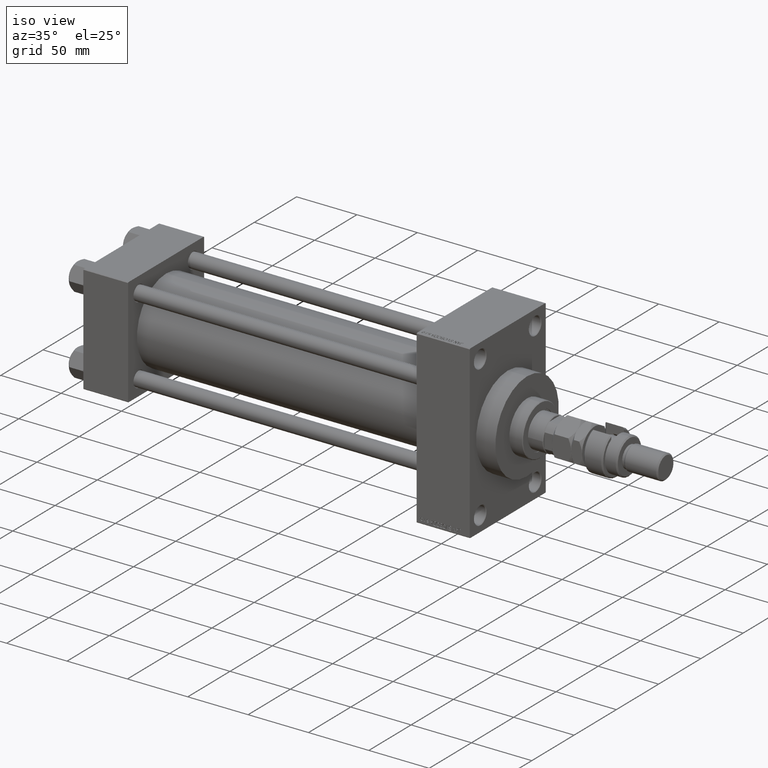
[diagram: clean part render]
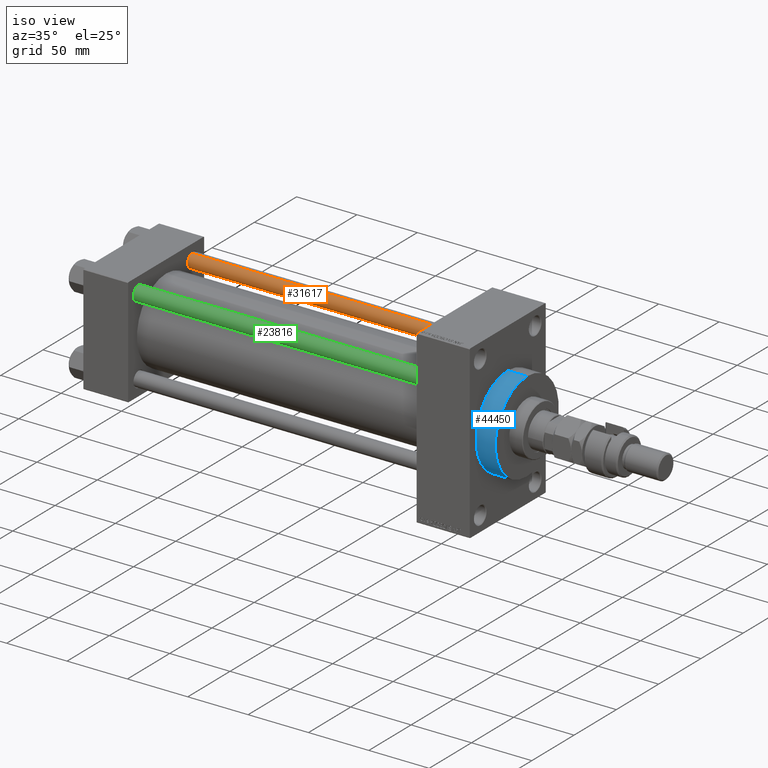
[diagram: same view with three faces highlighted in distinct colors, each labeled with its STEP entity id]
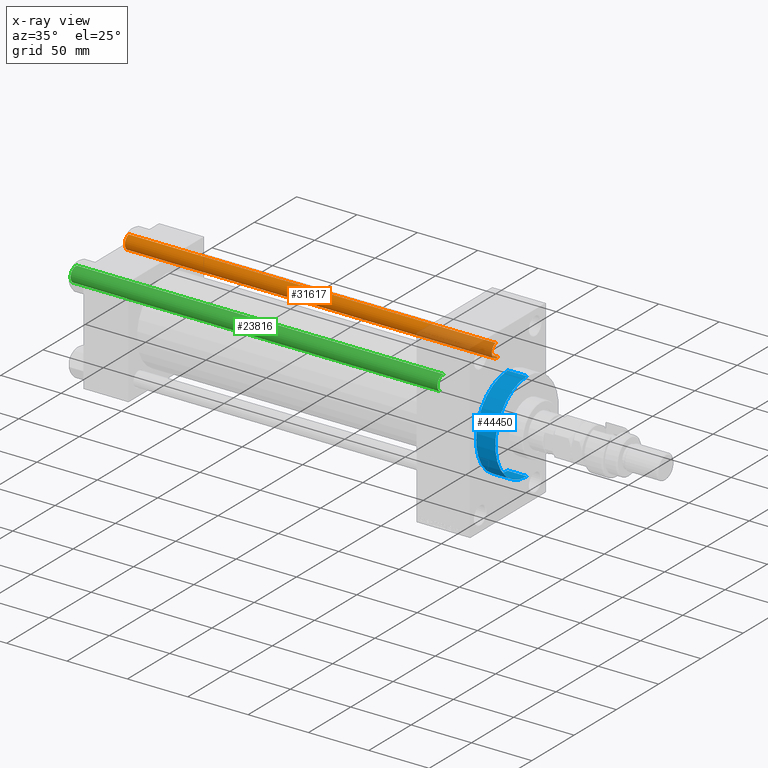
[diagram: x-ray of the same camera — body ghosted, the three highlighted faces saturated]
A machine part, iso view with three faces highlighted in distinct colors.
The next image is the same camera in x-ray (body ghosted, the three faces saturated) — at least one of them is partly hidden behind the body in this view.
Their STEP definitions:

[orange] entity #31617 — the highlighted cylindrical surface (edge-blend (fillet) strip) has radius 6 mm, axis along (-1, -0, 0).
#382 = DIRECTION ( 'NONE',  ( -0.000000000000000000, -0.000000000000000000, -1.000000000000000000 ) ) ;
#625 = DIRECTION ( 'NONE',  ( -1.000000000000000000, 0.000000000000000000, 0.000000000000000000 ) ) ;
#1060 = CARTESIAN_POINT ( 'NONE',  ( -6.000000000000000888, 0.000000000000000000, 304.5000000000000000 ) ) ;
#3107 = EDGE_CURVE ( 'NONE', #6228, #10237, #3944, .T. ) ;
#3944 = LINE ( 'NONE', #39117, #28793 ) ;
#5693 = ORIENTED_EDGE ( 'NONE', *, *, #22621, .T. ) ;
#6228 = VERTEX_POINT ( 'NONE', #37129 ) ;
#7204 = CARTESIAN_POINT ( 'NONE',  ( 0.000000000000000000, 0.000000000000000000, 0.5000000000000004441 ) ) ;
#8238 = CYLINDRICAL_SURFACE ( 'NONE', #37140, 6.000000000000000888 ) ;
#9472 = AXIS2_PLACEMENT_3D ( 'NONE', #7204, #10248, #22361 ) ;
#10237 = VERTEX_POINT ( 'NONE', #14074 ) ;
#10248 = DIRECTION ( 'NONE',  ( -0.000000000000000000, -0.000000000000000000, 1.000000000000000000 ) ) ;
#14074 = CARTESIAN_POINT ( 'NONE',  ( 6.000000000000000888, 7.347880794884120722E-16, 0.5000000000000004441 ) ) ;
#14193 = DIRECTION ( 'NONE',  ( -0.000000000000000000, -0.000000000000000000, -1.000000000000000000 ) ) ;
#15218 = DIRECTION ( 'NONE',  ( 0.000000000000000000, 0.000000000000000000, -1.000000000000000000 ) ) ;
#15479 = CARTESIAN_POINT ( 'NONE',  ( 0.000000000000000000, 0.000000000000000000, 304.5000000000000000 ) ) ;
#16490 = ORIENTED_EDGE ( 'NONE', *, *, #43060, .T. ) ;
#22361 = DIRECTION ( 'NONE',  ( 1.000000000000000000, 0.000000000000000000, 0.000000000000000000 ) ) ;
#22621 = EDGE_CURVE ( 'NONE', #26997, #10237, #47443, .T. ) ;
#24135 = DIRECTION ( 'NONE',  ( -0.000000000000000000, -0.000000000000000000, -1.000000000000000000 ) ) ;
#25826 = LINE ( 'NONE', #41055, #40228 ) ;
#26377 = EDGE_CURVE ( 'NONE', #48437, #26997, #25826, .T. ) ;
#26997 = VERTEX_POINT ( 'NONE', #41186 ) ;
#27688 = CARTESIAN_POINT ( 'NONE',  ( 0.000000000000000000, 0.000000000000000000, 305.0000000000000000 ) ) ;
#28793 = VECTOR ( 'NONE', #382, 1000.000000000000000 ) ;
#30664 = DIRECTION ( 'NONE',  ( 1.000000000000000000, 0.000000000000000000, 0.000000000000000000 ) ) ;
#31617 = ADVANCED_FACE ( 'NONE', ( #46702 ), #8238, .T. ) ;
#33929 = AXIS2_PLACEMENT_3D ( 'NONE', #15479, #15218, #30664 ) ;
#37129 = CARTESIAN_POINT ( 'NONE',  ( 6.000000000000000888, 7.347880794884120722E-16, 304.5000000000000000 ) ) ;
#37140 = AXIS2_PLACEMENT_3D ( 'NONE', #27688, #24135, #625 ) ;
#38824 = ORIENTED_EDGE ( 'NONE', *, *, #26377, .T. ) ;
#39117 = CARTESIAN_POINT ( 'NONE',  ( 6.000000000000000888, 7.347880794884120722E-16, 305.0000000000000000 ) ) ;
#40228 = VECTOR ( 'NONE', #14193, 1000.000000000000000 ) ;
#41055 = CARTESIAN_POINT ( 'NONE',  ( -6.000000000000000888, 0.000000000000000000, 305.0000000000000000 ) ) ;
#41186 = CARTESIAN_POINT ( 'NONE',  ( -6.000000000000000888, 0.000000000000000000, 0.5000000000000004441 ) ) ;
#43060 = EDGE_CURVE ( 'NONE', #6228, #48437, #49298, .T. ) ;
#44878 = ORIENTED_EDGE ( 'NONE', *, *, #3107, .F. ) ;
#46702 = FACE_OUTER_BOUND ( 'NONE', #48497, .T. ) ;
#47443 = CIRCLE ( 'NONE', #9472, 6.000000000000000888 ) ;
#48437 = VERTEX_POINT ( 'NONE', #1060 ) ;
#48497 = EDGE_LOOP ( 'NONE', ( #44878, #16490, #38824, #5693 ) ) ;
#49298 = CIRCLE ( 'NONE', #33929, 6.000000000000000888 ) ;

[blue] entity #44450 — the highlighted cylindrical surface (partial cylindrical patch) has radius 37.5 mm, axis along (-1, -0, -0).
#691 = DIRECTION ( 'NONE',  ( 0.000000000000000000, 0.000000000000000000, 1.000000000000000000 ) ) ;
#767 = CARTESIAN_POINT ( 'NONE',  ( 335.9999999999999432, 0.000000000000000000, 0.000000000000000000 ) ) ;
#1314 = ORIENTED_EDGE ( 'NONE', *, *, #10794, .F. ) ;
#1732 = DIRECTION ( 'NONE',  ( 0.000000000000000000, 0.000000000000000000, -1.000000000000000000 ) ) ;
#3071 = DIRECTION ( 'NONE',  ( -1.000000000000000000, -0.000000000000000000, -0.000000000000000000 ) ) ;
#4708 = CARTESIAN_POINT ( 'NONE',  ( 335.9999999999999432, 0.000000000000000000, 37.50000000000000711 ) ) ;
#5682 = ORIENTED_EDGE ( 'NONE', *, *, #32924, .F. ) ;
#6645 = VERTEX_POINT ( 'NONE', #16995 ) ;
#6871 = CARTESIAN_POINT ( 'NONE',  ( 335.9999999999999432, 4.592425496802575156E-15, -37.50000000000000711 ) ) ;
#7123 = LINE ( 'NONE', #6871, #46068 ) ;
#7624 = EDGE_LOOP ( 'NONE', ( #5682, #1314, #21260, #42569 ) ) ;
#8530 = CARTESIAN_POINT ( 'NONE',  ( 319.9999999999999432, 0.000000000000000000, 37.50000000000000711 ) ) ;
#10475 = CIRCLE ( 'NONE', #40423, 37.50000000000000711 ) ;
#10794 = EDGE_CURVE ( 'NONE', #21347, #25921, #10475, .T. ) ;
#13830 = CIRCLE ( 'NONE', #40527, 37.50000000000000711 ) ;
#16995 = CARTESIAN_POINT ( 'NONE',  ( 319.9999999999999432, 4.592425496802575156E-15, -37.50000000000000711 ) ) ;
#17133 = CYLINDRICAL_SURFACE ( 'NONE', #41293, 37.50000000000000711 ) ;
#21260 = ORIENTED_EDGE ( 'NONE', *, *, #37385, .T. ) ;
#21347 = VERTEX_POINT ( 'NONE', #4708 ) ;
#23696 = DIRECTION ( 'NONE',  ( -1.000000000000000000, -0.000000000000000000, -0.000000000000000000 ) ) ;
#23930 = VERTEX_POINT ( 'NONE', #8530 ) ;
#25921 = VERTEX_POINT ( 'NONE', #44917 ) ;
#26694 = VECTOR ( 'NONE', #43204, 1000.000000000000000 ) ;
#28250 = CARTESIAN_POINT ( 'NONE',  ( 335.9999999999999432, 0.000000000000000000, 0.000000000000000000 ) ) ;
#31290 = CARTESIAN_POINT ( 'NONE',  ( 335.9999999999999432, 0.000000000000000000, 37.50000000000000711 ) ) ;
#31818 = FACE_OUTER_BOUND ( 'NONE', #7624, .T. ) ;
#32924 = EDGE_CURVE ( 'NONE', #25921, #6645, #7123, .T. ) ;
#34608 = EDGE_CURVE ( 'NONE', #23930, #6645, #13830, .T. ) ;
#36148 = CARTESIAN_POINT ( 'NONE',  ( 319.9999999999999432, 0.000000000000000000, 0.000000000000000000 ) ) ;
#36453 = DIRECTION ( 'NONE',  ( 1.000000000000000000, 0.000000000000000000, 0.000000000000000000 ) ) ;
#36659 = DIRECTION ( 'NONE',  ( 1.000000000000000000, 0.000000000000000000, 0.000000000000000000 ) ) ;
#37385 = EDGE_CURVE ( 'NONE', #21347, #23930, #39146, .T. ) ;
#39146 = LINE ( 'NONE', #31290, #26694 ) ;
#40423 = AXIS2_PLACEMENT_3D ( 'NONE', #767, #36453, #47590 ) ;
#40527 = AXIS2_PLACEMENT_3D ( 'NONE', #36148, #36659, #1732 ) ;
#41293 = AXIS2_PLACEMENT_3D ( 'NONE', #28250, #23696, #691 ) ;
#42569 = ORIENTED_EDGE ( 'NONE', *, *, #34608, .T. ) ;
#43204 = DIRECTION ( 'NONE',  ( -1.000000000000000000, -0.000000000000000000, -0.000000000000000000 ) ) ;
#44450 = ADVANCED_FACE ( 'NONE', ( #31818 ), #17133, .T. ) ;
#44917 = CARTESIAN_POINT ( 'NONE',  ( 335.9999999999999432, 4.592425496802575156E-15, -37.50000000000000711 ) ) ;
#46068 = VECTOR ( 'NONE', #3071, 1000.000000000000000 ) ;
#47590 = DIRECTION ( 'NONE',  ( 0.000000000000000000, 0.000000000000000000, -1.000000000000000000 ) ) ;

[green] entity #23816 — the highlighted cylindrical surface (edge-blend (fillet) strip) has radius 6 mm, axis along (1, 0, 0).
#201 = EDGE_LOOP ( 'NONE', ( #5443, #42107, #18013, #38277 ) ) ;
#382 = DIRECTION ( 'NONE',  ( -0.000000000000000000, -0.000000000000000000, -1.000000000000000000 ) ) ;
#1060 = CARTESIAN_POINT ( 'NONE',  ( -6.000000000000000888, 0.000000000000000000, 304.5000000000000000 ) ) ;
#1407 = CIRCLE ( 'NONE', #28041, 6.000000000000000888 ) ;
#1924 = DIRECTION ( 'NONE',  ( 0.000000000000000000, 0.000000000000000000, -1.000000000000000000 ) ) ;
#3107 = EDGE_CURVE ( 'NONE', #6228, #10237, #3944, .T. ) ;
#3490 = DIRECTION ( 'NONE',  ( -0.000000000000000000, -0.000000000000000000, -1.000000000000000000 ) ) ;
#3944 = LINE ( 'NONE', #39117, #28793 ) ;
#4133 = DIRECTION ( 'NONE',  ( -0.000000000000000000, -0.000000000000000000, 1.000000000000000000 ) ) ;
#4628 = AXIS2_PLACEMENT_3D ( 'NONE', #48483, #1924, #33037 ) ;
#5443 = ORIENTED_EDGE ( 'NONE', *, *, #22503, .T. ) ;
#6228 = VERTEX_POINT ( 'NONE', #37129 ) ;
#10237 = VERTEX_POINT ( 'NONE', #14074 ) ;
#14074 = CARTESIAN_POINT ( 'NONE',  ( 6.000000000000000888, 7.347880794884120722E-16, 0.5000000000000004441 ) ) ;
#14193 = DIRECTION ( 'NONE',  ( -0.000000000000000000, -0.000000000000000000, -1.000000000000000000 ) ) ;
#16497 = CARTESIAN_POINT ( 'NONE',  ( 0.000000000000000000, 0.000000000000000000, 0.5000000000000004441 ) ) ;
#18013 = ORIENTED_EDGE ( 'NONE', *, *, #26155, .T. ) ;
#18898 = CARTESIAN_POINT ( 'NONE',  ( 0.000000000000000000, 0.000000000000000000, 305.0000000000000000 ) ) ;
#21963 = FACE_OUTER_BOUND ( 'NONE', #201, .T. ) ;
#22503 = EDGE_CURVE ( 'NONE', #48437, #6228, #36934, .T. ) ;
#23816 = ADVANCED_FACE ( 'NONE', ( #21963 ), #29322, .T. ) ;
#25826 = LINE ( 'NONE', #41055, #40228 ) ;
#26155 = EDGE_CURVE ( 'NONE', #10237, #26997, #1407, .T. ) ;
#26377 = EDGE_CURVE ( 'NONE', #48437, #26997, #25826, .T. ) ;
#26997 = VERTEX_POINT ( 'NONE', #41186 ) ;
#28041 = AXIS2_PLACEMENT_3D ( 'NONE', #16497, #4133, #46401 ) ;
#28793 = VECTOR ( 'NONE', #382, 1000.000000000000000 ) ;
#29322 = CYLINDRICAL_SURFACE ( 'NONE', #29571, 6.000000000000000888 ) ;
#29571 = AXIS2_PLACEMENT_3D ( 'NONE', #18898, #3490, #33853 ) ;
#33037 = DIRECTION ( 'NONE',  ( 1.000000000000000000, 0.000000000000000000, 0.000000000000000000 ) ) ;
#33853 = DIRECTION ( 'NONE',  ( -1.000000000000000000, 0.000000000000000000, 0.000000000000000000 ) ) ;
#36934 = CIRCLE ( 'NONE', #4628, 6.000000000000000888 ) ;
#37129 = CARTESIAN_POINT ( 'NONE',  ( 6.000000000000000888, 7.347880794884120722E-16, 304.5000000000000000 ) ) ;
#38277 = ORIENTED_EDGE ( 'NONE', *, *, #26377, .F. ) ;
#39117 = CARTESIAN_POINT ( 'NONE',  ( 6.000000000000000888, 7.347880794884120722E-16, 305.0000000000000000 ) ) ;
#40228 = VECTOR ( 'NONE', #14193, 1000.000000000000000 ) ;
#41055 = CARTESIAN_POINT ( 'NONE',  ( -6.000000000000000888, 0.000000000000000000, 305.0000000000000000 ) ) ;
#41186 = CARTESIAN_POINT ( 'NONE',  ( -6.000000000000000888, 0.000000000000000000, 0.5000000000000004441 ) ) ;
#42107 = ORIENTED_EDGE ( 'NONE', *, *, #3107, .T. ) ;
#46401 = DIRECTION ( 'NONE',  ( 1.000000000000000000, 0.000000000000000000, 0.000000000000000000 ) ) ;
#48437 = VERTEX_POINT ( 'NONE', #1060 ) ;
#48483 = CARTESIAN_POINT ( 'NONE',  ( 0.000000000000000000, 0.000000000000000000, 304.5000000000000000 ) ) ;